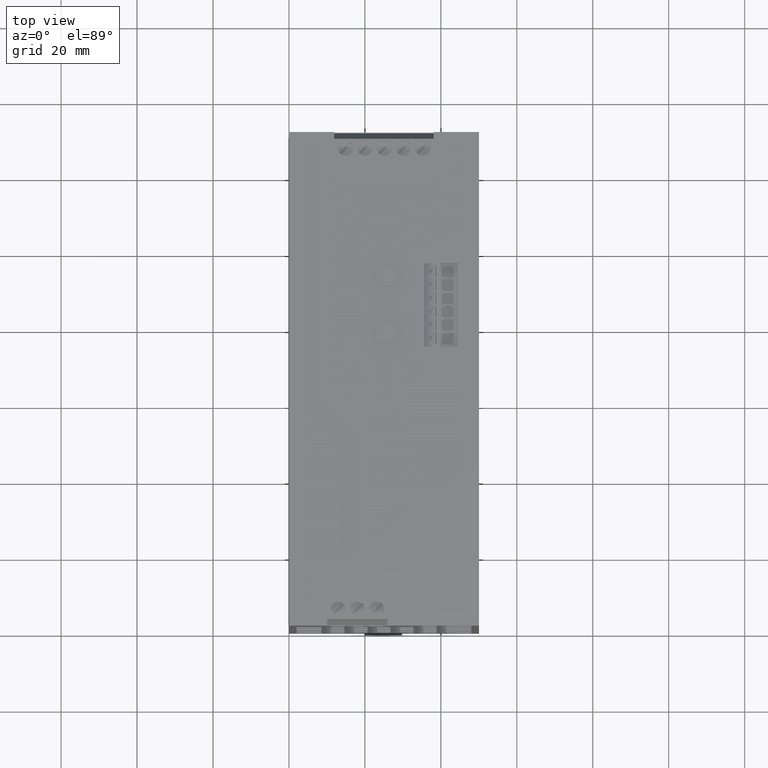
[diagram: clean part render]
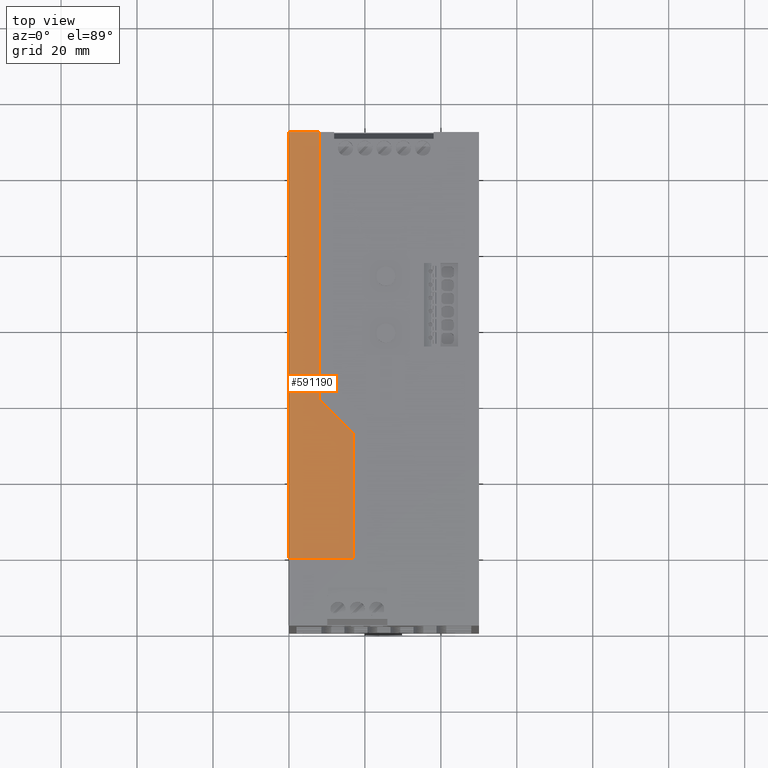
[diagram: same view with one face highlighted and labeled with its STEP entity id]
A machine part, top view. The second image highlights one B-rep face of the part: STEP entity #591190.
In plain terms, the highlighted planar face has unit normal (-0, -0, 1).
Its self-contained STEP definition (entity closure, byte-faithful):
#7550=CARTESIAN_POINT('',(-6.05999999999999,122.,69.5108097823449));
#7560=VERTEX_POINT('',#7550);
#7610=CARTESIAN_POINT('',(-6.05999999999999,122.,0.));
#7620=DIRECTION('',(5.24753851482984E-17,0.,1.));
#7630=VECTOR('',#7620,1.);
#7640=LINE('',#7610,#7630);
#7650=CARTESIAN_POINT('',(-6.05999999999999,122.,-0.800000000000011));
#7660=VERTEX_POINT('',#7650);
#7670=EDGE_CURVE('',#7660,#7560,#7640,.T.);
#262530=CARTESIAN_POINT('',(-14.06,122.,111.599161077708));
#262540=VERTEX_POINT('',#262530);
#262570=CARTESIAN_POINT('',(0.,122.,111.598967797415));
#262580=DIRECTION('',(-0.999999999905512,0.,1.37468202359202E-5));
#262590=VECTOR('',#262580,1.);
#262600=LINE('',#262570,#262590);
#262610=CARTESIAN_POINT('',(2.94000000000006,122.,111.598927381764));
#262620=VERTEX_POINT('',#262610);
#262630=EDGE_CURVE('',#262620,#262540,#262600,.T.);
#509160=CARTESIAN_POINT('',(2.94000000000006,122.,0.));
#509170=DIRECTION('',(0.,0.,1.));
#509180=VECTOR('',#509170,1.);
#509190=LINE('',#509160,#509180);
#509200=CARTESIAN_POINT('',(2.94000000000006,122.,78.5108097823449));
#509210=VERTEX_POINT('',#509200);
#509220=EDGE_CURVE('',#509210,#262620,#509190,.T.);
#546130=CARTESIAN_POINT('',(0.,122.,-0.800000000000011));
#546140=DIRECTION('',(1.,0.,0.));
#546150=VECTOR('',#546140,1.);
#546160=LINE('',#546130,#546150);
#546170=CARTESIAN_POINT('',(-14.06,122.,-0.800000000000011));
#546180=VERTEX_POINT('',#546170);
#546190=EDGE_CURVE('',#546180,#7660,#546160,.T.);
#590960=CARTESIAN_POINT('',(-8.05999999999573,122.,54.8824629050541));
#590970=DIRECTION('',(0.,1.,0.));
#590980=DIRECTION('',(0.999995687458094,0.,-0.00293684613377792));
#590990=AXIS2_PLACEMENT_3D('',#590960,#590970,#590980);
#591000=PLANE('',#590990);
#591010=ORIENTED_EDGE('',*,*,#7670,.F.);
#591020=CARTESIAN_POINT('',(-20.6788695679299,121.999999999999,
54.891940214415));
#591030=DIRECTION('',(-0.707106781186548,0.,-0.707106781186547));
#591040=VECTOR('',#591030,1.);
#591050=LINE('',#591020,#591040);
#591060=EDGE_CURVE('',#509210,#7560,#591050,.T.);
#591070=ORIENTED_EDGE('',*,*,#591060,.T.);
#591080=ORIENTED_EDGE('',*,*,#509220,.F.);
#591090=ORIENTED_EDGE('',*,*,#262630,.F.);
#591100=CARTESIAN_POINT('',(-14.06,122.,0.));
#591110=DIRECTION('',(0.,0.,-1.));
#591120=VECTOR('',#591110,1.);
#591130=LINE('',#591100,#591120);
#591140=EDGE_CURVE('',#262540,#546180,#591130,.T.);
#591150=ORIENTED_EDGE('',*,*,#591140,.F.);
#591160=ORIENTED_EDGE('',*,*,#546190,.F.);
#591170=EDGE_LOOP('',(#591160,#591150,#591090,#591080,#591070,#591010));
#591180=FACE_OUTER_BOUND('',#591170,.T.);
#591190=ADVANCED_FACE('',(#591180),#591000,.T.);